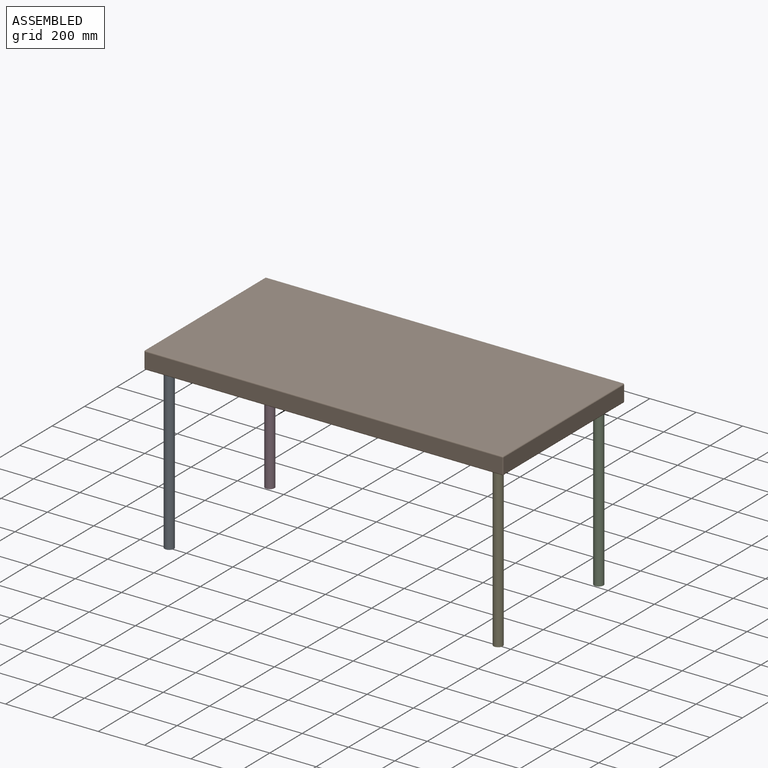
[diagram: assembled view]
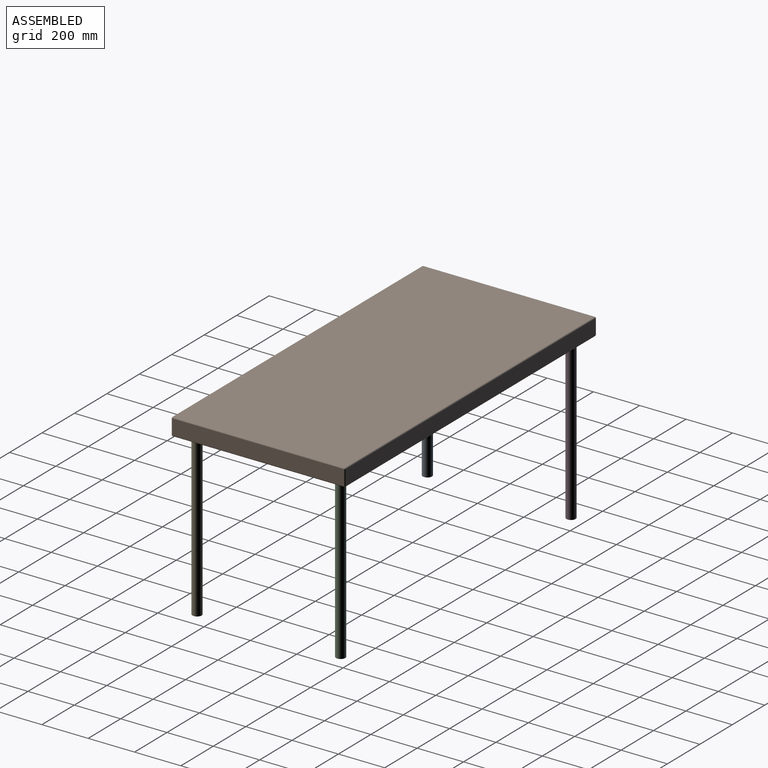
[diagram: assembled view, second angle]
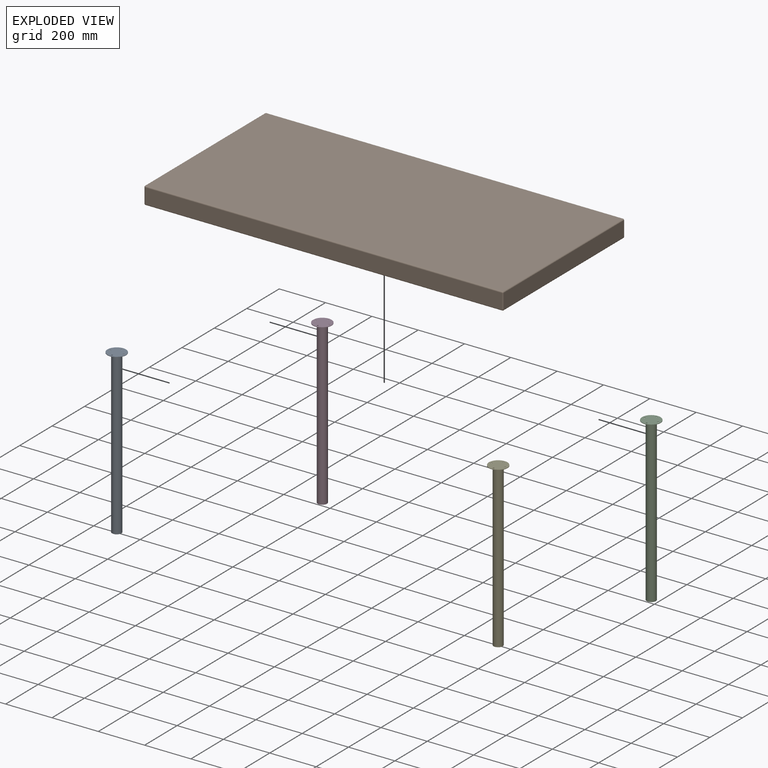
[diagram: exploded view]
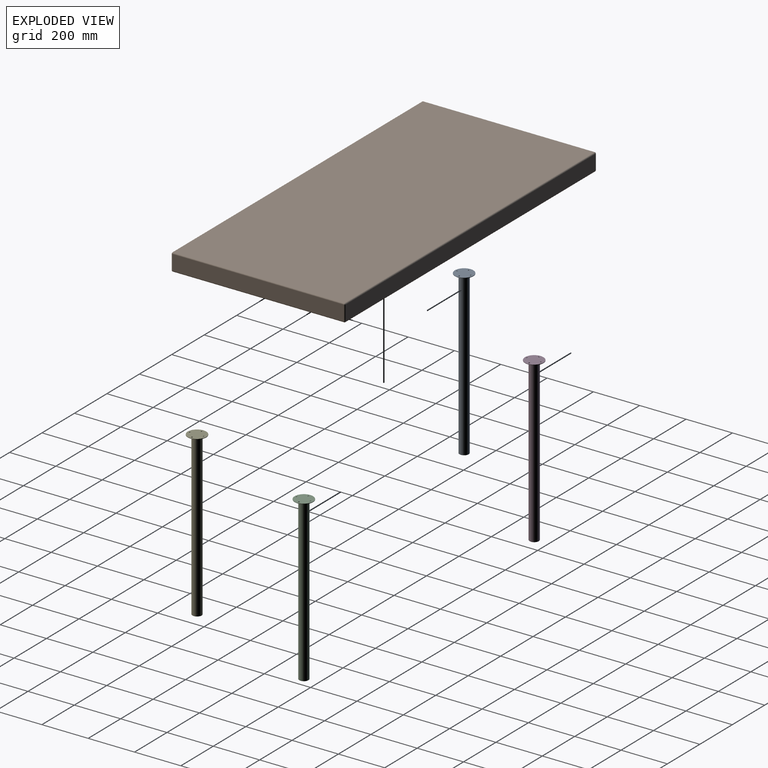
[diagram: exploded view, second angle]
ASSEMBLY  parts=5 mates=3
PART A: 9 faces, bbox 80x80x702 mm
  f0: cylinder r=20mm len=700mm, axis (0,0,1), area 87964.6mm2, adj f1,f8
  f1: plane 40x40mm, normal (0,0,-1), area 1256.6mm2, adj f0
  f2: cylinder r=3mm len=6mm, axis (0,0,-1), area 37.7mm2, adj f7,f8
  f3: cylinder r=3mm len=6mm, axis (0,0,-1), area 37.7mm2, adj f7,f8
  f4: cylinder r=3mm len=6mm, axis (0,0,-1), area 37.7mm2, adj f7,f8
  f5: cylinder r=3mm len=6mm, axis (0,0,-1), area 37.7mm2, adj f7,f8
  f6: cylinder r=40mm len=80mm, axis (0,0,-1), area 502.7mm2, adj f7,f8
  f7: plane 80x80mm, normal (0,0,1), area 4913.5mm2, adj f2,f3,f4,f5,f6
  f8: plane 80x80mm, normal (0,0,-1), area 3656.8mm2, adj f0,f2,f3,f4,f5,f6
PART B: 58 faces, bbox 1550x750x75 mm
  f0: plane 1540x65mm, normal (0,1,0), area 100100mm2, adj f6,f9,f13,f14
  f1: plane 740x65mm, normal (-1,0,0), area 48100mm2, adj f9,f10,f19,f20
  f2: plane 1540x65mm, normal (0,-1,0), area 100100mm2, adj f11,f20,f21,f25
  f3: plane 740x65mm, normal (1,0,0), area 48100mm2, adj f12,f13,f21,f22
  f4: plane 1540x740mm, normal (0,0,1), area 1139600mm2, adj f6,f10,f11,f12
  f5: plane 1540x740mm, normal (0,0,-1), area 1139285.8mm2, adj f14,f19,f22,f25,f27,f29,f31,f33
  f6: cylinder r=5mm len=1540mm, axis (1,0,0), area 12095.1mm2, adj f0,f4,f7,f8
  f7: sphere r=5mm, area 39.3mm2, adj f6,f9,f10
  f8: sphere r=5mm, area 39.3mm2, adj f6,f12,f13
  f9: cylinder r=5mm len=65mm, axis (0,0,1), area 510.5mm2, adj f0,f1,f7,f15
  f10: cylinder r=5mm len=740mm, axis (0,1,0), area 5811.9mm2, adj f1,f4,f7,f16
  f11: cylinder r=5mm len=1540mm, axis (-1,0,0), area 12095.1mm2, adj f2,f4,f16,f17
  f12: cylinder r=5mm len=740mm, axis (0,-1,0), area 5811.9mm2, adj f3,f4,f8,f17
  f13: cylinder r=5mm len=65mm, axis (0,0,-1), area 510.5mm2, adj f0,f3,f8,f18
  f14: cylinder r=5mm len=1540mm, axis (-1,0,0), area 12095.1mm2, adj f0,f5,f15,f18
  f15: sphere r=5mm, area 39.3mm2, adj f9,f14,f19
  f16: sphere r=5mm, area 39.3mm2, adj f10,f11,f20
  f17: sphere r=5mm, area 39.3mm2, adj f11,f12,f21
  f18: sphere r=5mm, area 39.3mm2, adj f13,f14,f22
  f19: cylinder r=5mm len=740mm, axis (0,-1,0), area 5811.9mm2, adj f1,f5,f15,f23
  f20: cylinder r=5mm len=65mm, axis (0,0,-1), area 510.5mm2, adj f1,f2,f16,f23
  f21: cylinder r=5mm len=65mm, axis (0,0,1), area 510.5mm2, adj f2,f3,f17,f24
  f22: cylinder r=5mm len=740mm, axis (0,1,0), area 5811.9mm2, adj f3,f5,f18,f24
  f23: sphere r=5mm, area 39.3mm2, adj f19,f20,f25
  f24: sphere r=5mm, area 39.3mm2, adj f21,f22,f25
  f25: cylinder r=5mm len=1540mm, axis (1,0,0), area 12095.1mm2, adj f2,f5,f23,f24
  f26: cone r=0mm half-angle=59deg, axis (0,0,-1), area 22.9mm2, adj f27
  f27: cylinder r=2.5mm len=12mm, axis (0,0,-1), area 188.5mm2, adj f5,f26
  f28: cone r=0mm half-angle=59deg, axis (0,0,-1), area 22.9mm2, adj f29
  f29: cylinder r=2.5mm len=12mm, axis (0,0,-1), area 188.5mm2, adj f5,f28
  f30: cone r=0mm half-angle=59deg, axis (0,0,-1), area 22.9mm2, adj f31
  f31: cylinder r=2.5mm len=12mm, axis (0,0,-1), area 188.5mm2, adj f5,f30
  f32: cone r=0mm half-angle=59deg, axis (0,0,-1), area 22.9mm2, adj f33
  f33: cylinder r=2.5mm len=12mm, axis (0,0,-1), area 188.5mm2, adj f5,f32
  f34: cone r=0mm half-angle=59deg, axis (0,0,-1), area 22.9mm2, adj f35
  f35: cylinder r=2.5mm len=12mm, axis (0,0,-1), area 188.5mm2, adj f5,f34
  f36: cone r=0mm half-angle=59deg, axis (0,0,-1), area 22.9mm2, adj f37
  f37: cylinder r=2.5mm len=12mm, axis (0,0,-1), area 188.5mm2, adj f5,f36
  f38: cone r=0mm half-angle=59deg, axis (0,0,-1), area 22.9mm2, adj f39
  f39: cylinder r=2.5mm len=12mm, axis (0,0,-1), area 188.5mm2, adj f5,f38
  f40: cone r=0mm half-angle=59deg, axis (0,0,-1), area 22.9mm2, adj f41
  f41: cylinder r=2.5mm len=12mm, axis (0,0,-1), area 188.5mm2, adj f5,f40
  f42: cone r=0mm half-angle=59deg, axis (0,0,-1), area 22.9mm2, adj f43
  f43: cylinder r=2.5mm len=12mm, axis (0,0,-1), area 188.5mm2, adj f5,f42
  f44: cone r=0mm half-angle=59deg, axis (0,0,-1), area 22.9mm2, adj f45
  f45: cylinder r=2.5mm len=12mm, axis (0,0,-1), area 188.5mm2, adj f5,f44
  f46: cone r=0mm half-angle=59deg, axis (0,0,-1), area 22.9mm2, adj f47
  f47: cylinder r=2.5mm len=12mm, axis (0,0,-1), area 188.5mm2, adj f5,f46
  f48: cone r=0mm half-angle=59deg, axis (0,0,-1), area 22.9mm2, adj f49
  f49: cylinder r=2.5mm len=12mm, axis (0,0,-1), area 188.5mm2, adj f5,f48
  f50: cone r=0mm half-angle=59deg, axis (0,0,-1), area 22.9mm2, adj f51
  f51: cylinder r=2.5mm len=12mm, axis (0,0,-1), area 188.5mm2, adj f5,f50
  f52: cone r=0mm half-angle=59deg, axis (0,0,-1), area 22.9mm2, adj f53
  f53: cylinder r=2.5mm len=12mm, axis (0,0,-1), area 188.5mm2, adj f5,f52
  f54: cone r=0mm half-angle=59deg, axis (0,0,-1), area 22.9mm2, adj f55
  f55: cylinder r=2.5mm len=12mm, axis (0,0,-1), area 188.5mm2, adj f5,f54
  f56: cone r=0mm half-angle=59deg, axis (0,0,-1), area 22.9mm2, adj f57
  f57: cylinder r=2.5mm len=12mm, axis (0,0,-1), area 188.5mm2, adj f5,f56
PART C: same geometry as A
PART D: same geometry as A
PART E: same geometry as A
PLACE A rot(axis=(0,0,1),180deg) t=(-1242.03,-445.71,42.28)mm
PLACE B t=(-530.79,-135.71,69.28)mm fixed
PLACE C rot(axis=(0,0,1),180deg) t=(177.97,174.29,42.28)mm
PLACE D rot(axis=(0,0,1),180deg) t=(-1242.03,174.29,42.28)mm
PLACE E rot(axis=(0,0,1),180deg) t=(177.97,-445.71,42.28)mm
MATE planar A.f7 <-> B.f5  axis (0,0,1) through (-1242.05,-445.71,44.28)mm
MATE cylindrical A.f5 <-> B.f34  axis (0,0,-1) through (-1240.79,-475.71,42.28)mm
MATE cylindrical A.f4 <-> B.f40  axis (0,0,1) through (-1270.79,-445.71,44.28)mm
